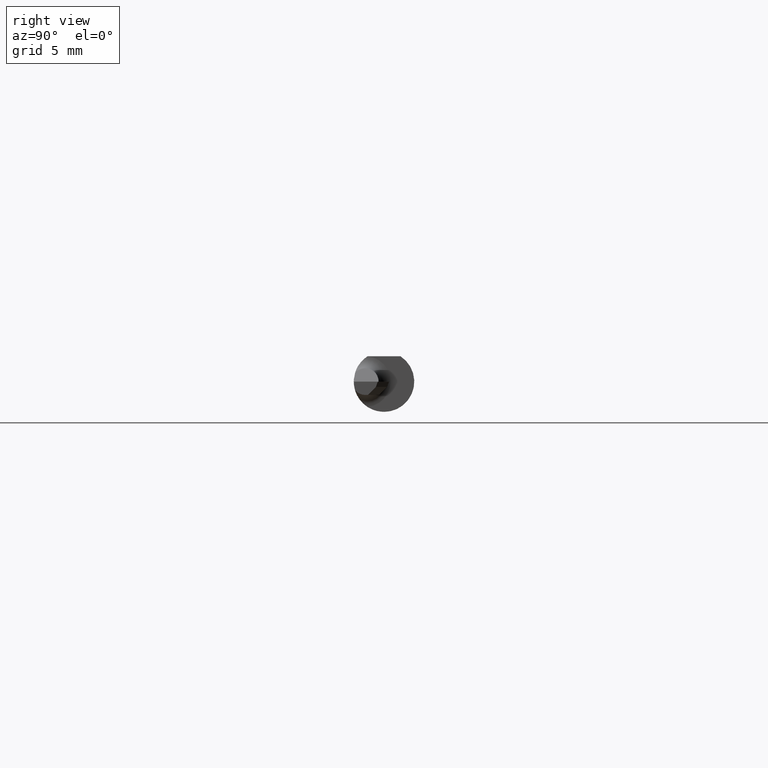
[diagram: clean part render]
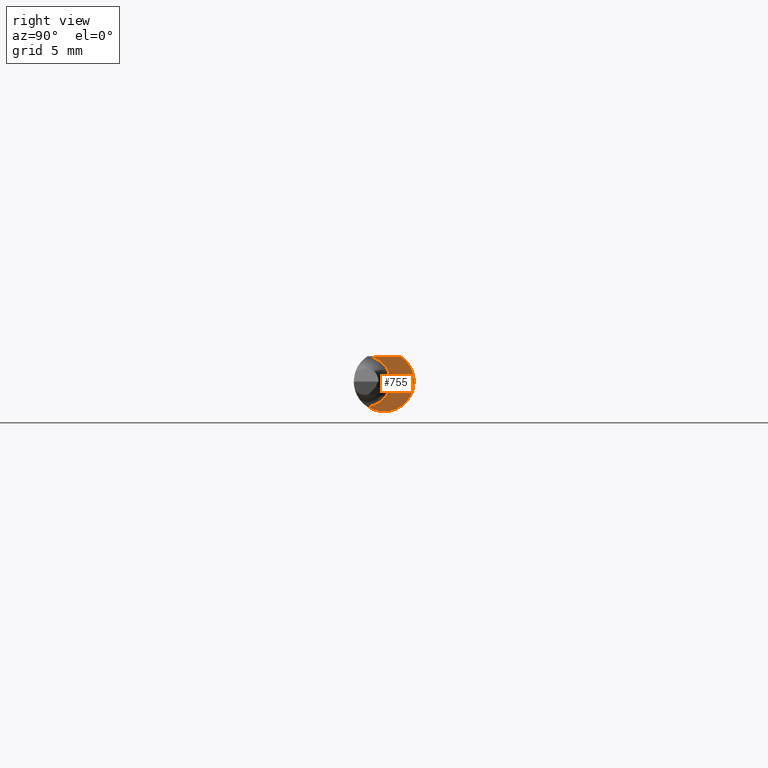
[diagram: same view with one face highlighted and labeled with its STEP entity id]
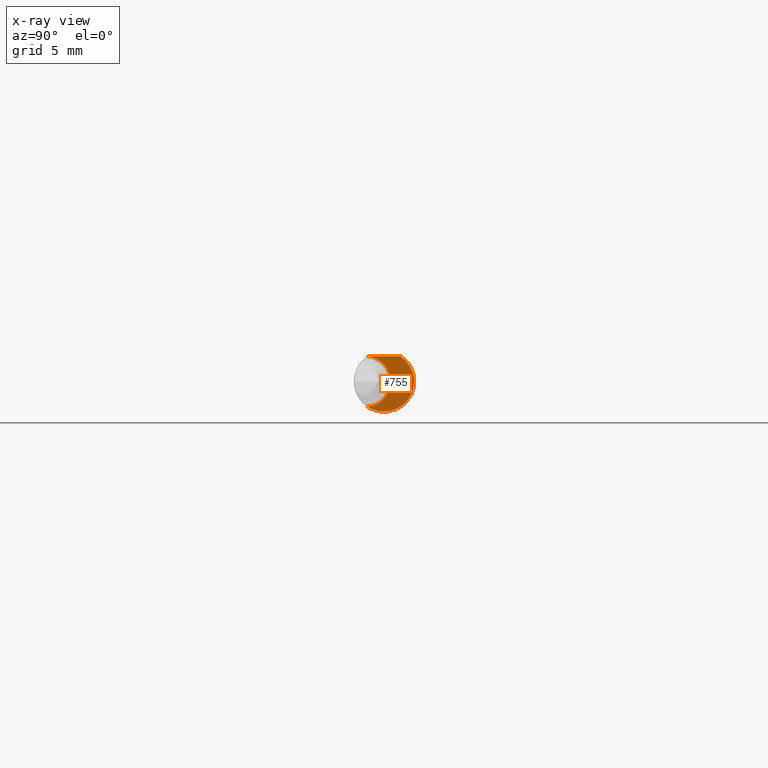
[diagram: x-ray of the same camera — body ghosted, the highlighted face saturated]
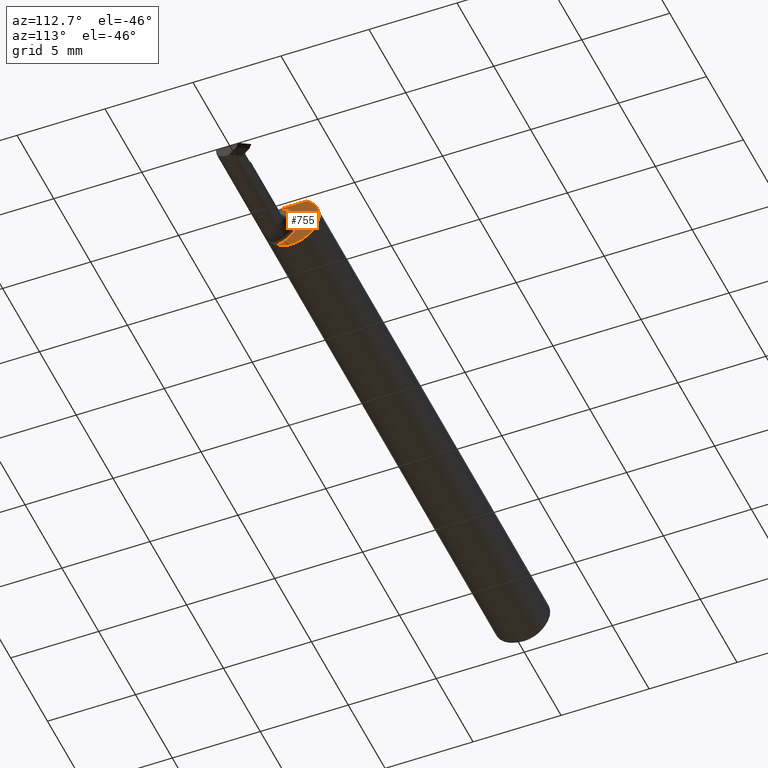
[diagram: same view with one face highlighted and labeled with its STEP entity id]
A machine part, right view. The second image highlights one B-rep face of the part: STEP entity #755.
The next image is the same camera in x-ray: the body ghosted, the highlighted face saturated — about 0% of this face is hidden behind the body in this view.
A second angle (auxiliary view) of the same face is appended — the face is thin or edge-on in the first view.
In plain terms, the highlighted planar face has unit normal (1, 0, 0).
Its self-contained STEP definition (entity closure, byte-faithful):
#2 = EDGE_CURVE ( 'NONE', #265, #480, #497, .T. ) ;
#8 = CARTESIAN_POINT ( 'NONE',  ( 1.244999999999999885, 0.06234999999999996795, 0.000000000000000000 ) ) ;
#23 = ORIENTED_EDGE ( 'NONE', *, *, #2, .T. ) ;
#33 = CARTESIAN_POINT ( 'NONE',  ( 1.244999999999999885, -0.03398449163449160371, 0.05227405502106346330 ) ) ;
#34 = DIRECTION ( 'NONE',  ( 0.000000000000000000, 1.000000000000000000, 0.000000000000000000 ) ) ;
#69 = FACE_OUTER_BOUND ( 'NONE', #657, .T. ) ;
#75 = AXIS2_PLACEMENT_3D ( 'NONE', #283, #162, #217 ) ;
#95 = EDGE_CURVE ( 'NONE', #461, #683, #601, .T. ) ;
#111 = CARTESIAN_POINT ( 'NONE',  ( 1.244999999999999885, -0.03386738844375228319, 0.05234999999999997294 ) ) ;
#157 = CARTESIAN_POINT ( 'NONE',  ( 1.244999999999999885, -0.03398449163449160371, -0.05227405502106346330 ) ) ;
#162 = DIRECTION ( 'NONE',  ( -1.000000000000000000, -1.134245723387741042E-16, -0.000000000000000000 ) ) ;
#171 = ORIENTED_EDGE ( 'NONE', *, *, #393, .T. ) ;
#217 = DIRECTION ( 'NONE',  ( 0.000000000000000000, -1.000000000000000000, 0.000000000000000000 ) ) ;
#218 = VECTOR ( 'NONE', #226, 39.37007874015748143 ) ;
#226 = DIRECTION ( 'NONE',  ( -1.134245723387741042E-16, 1.000000000000000000, 0.000000000000000000 ) ) ;
#255 = CARTESIAN_POINT ( 'NONE',  ( 1.244999999999999885, 0.03386738844375224849, 0.05234999999999997294 ) ) ;
#261 = DIRECTION ( 'NONE',  ( 1.000000000000000000, 1.134245723387741042E-16, 0.000000000000000000 ) ) ;
#265 = VERTEX_POINT ( 'NONE', #111 ) ;
#276 = CARTESIAN_POINT ( 'NONE',  ( 1.244999999999999885, 0.000000000000000000, 0.000000000000000000 ) ) ;
#283 = CARTESIAN_POINT ( 'NONE',  ( 1.244999999999999885, -0.03885000000000005116, 0.000000000000000000 ) ) ;
#393 = EDGE_CURVE ( 'NONE', #480, #461, #495, .T. ) ;
#396 = CARTESIAN_POINT ( 'NONE',  ( 1.244999999999999885, 0.06234999999999996101, 0.05234999999999997294 ) ) ;
#405 = EDGE_CURVE ( 'NONE', #265, #683, #521, .T. ) ;
#411 = DIRECTION ( 'NONE',  ( 1.000000000000000000, 1.134245723387741042E-16, 0.000000000000000000 ) ) ;
#415 = AXIS2_PLACEMENT_3D ( 'NONE', #543, #620, #791 ) ;
#451 = AXIS2_PLACEMENT_3D ( 'NONE', #8, #261, #745 ) ;
#461 = VERTEX_POINT ( 'NONE', #157 ) ;
#480 = VERTEX_POINT ( 'NONE', #33 ) ;
#495 = CIRCLE ( 'NONE', #75, 0.05250000000000001887 ) ;
#497 = CIRCLE ( 'NONE', #415, 0.06235000000000000264 ) ;
#521 = LINE ( 'NONE', #396, #218 ) ;
#543 = CARTESIAN_POINT ( 'NONE',  ( 1.244999999999999885, 0.000000000000000000, 0.000000000000000000 ) ) ;
#601 = CIRCLE ( 'NONE', #624, 0.06235000000000000264 ) ;
#620 = DIRECTION ( 'NONE',  ( 1.000000000000000000, 1.134245723387741042E-16, 0.000000000000000000 ) ) ;
#621 = PLANE ( 'NONE',  #451 ) ;
#624 = AXIS2_PLACEMENT_3D ( 'NONE', #276, #411, #34 ) ;
#657 = EDGE_LOOP ( 'NONE', ( #689, #700, #23, #171 ) ) ;
#683 = VERTEX_POINT ( 'NONE', #255 ) ;
#689 = ORIENTED_EDGE ( 'NONE', *, *, #95, .T. ) ;
#700 = ORIENTED_EDGE ( 'NONE', *, *, #405, .F. ) ;
#745 = DIRECTION ( 'NONE',  ( -1.134245723387741042E-16, 1.000000000000000000, 0.000000000000000000 ) ) ;
#755 = ADVANCED_FACE ( 'NONE', ( #69 ), #621, .T. ) ;
#791 = DIRECTION ( 'NONE',  ( 0.000000000000000000, 1.000000000000000000, 0.000000000000000000 ) ) ;